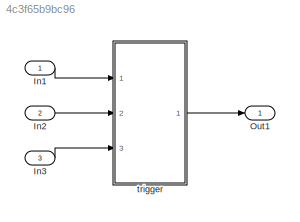
MODEL slx_4c3f65b9bc96
KIND model
CONFIG AbsTol = auto
CONFIG EnableMultiTasking = off
CONFIG FixedStep = auto
CONFIG MaxStep = auto
CONFIG MinStep = auto
CONFIG RelTol = 1e-3
CONFIG SampleTimeConstraint = Unconstrained
CONFIG Solver = FixedStepDiscrete
CONFIG SolverName = FixedStepDiscrete
CONFIG StartTime = 0.0
CONFIG StopTime = 10.0
BLOCK [Inport] In1
  IconDisplay = Port number
BLOCK [Inport] In2
  IconDisplay = Port number
  Port = 2
BLOCK [Inport] In3
  IconDisplay = Port number
  Port = 3
BLOCK [Outport] Out1
  IconDisplay = Port number
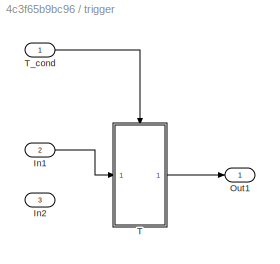
BLOCK [SubSystem] trigger
  AncestorBlock = Block_TestLib/trigger
  Ports = [3, 1]
  RequestExecContextInheritance = off
  Variant = off
BLOCK [Inport] trigger/In1
  IconDisplay = Port number
  Port = 2
BLOCK [Inport] trigger/In2
  IconDisplay = Port number
  Port = 3
BLOCK [Outport] trigger/Out1
  IconDisplay = Port number
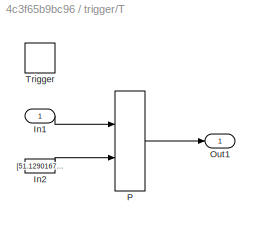
BLOCK [SubSystem] trigger/T
  Ports = [1, 1, 0, 1]
  RequestExecContextInheritance = off
  TreatAsAtomicUnit = on
  Variant = off
BLOCK [Inport] trigger/T/In1
  IconDisplay = Port number
  OutDataTypeStr = double
  PortDimensions = [2,3]
BLOCK [Constant] trigger/T/In2
  Value = [51.1290167803944 52.6290167803944 54.1290167803944 55.6290167803944 57.1290167803944 58.6290167803944 60.1290167803944 61.6290167803944 63.1290167803944 64.6290167803944 66.1290167803944 67.6290167803944 69.1290167803944 70.6290167803944 72.1290167803944 73.6290167803944 75.1290167803944 76.6290167803944 78.1290167803944 79.6290167803944 81.1290167803944 82.6290167803944 84.1290167803944 85.62901...<+43ch>
BLOCK [Outport] trigger/T/Out1
  IconDisplay = Port number
BLOCK [PreLookup] trigger/T/P
  BeginIndexSearchUsingPreviousIndexResult = on
  BreakpointDataTypeStr = int8
  BreakpointsData = [10:10:110]
  BreakpointsDataSource = Input port
  FractionDataTypeStr = double
  IndexDataTypeStr = int16
  IndexSearchMethod = Linear search
  InputPortMap = u0,p1
  OutputSelection = Index only
  Ports = [2, 1]
  RndMeth = Ceiling
BLOCK [TriggerPort] trigger/T/Trigger
  Ports = []
  StatesWhenEnabling = held
  VariantControl = Variant
BLOCK [Inport] trigger/T_cond
  IconDisplay = Port number
  OutDataTypeStr = boolean
LINE In1:1 -> trigger:1
LINE In2:1 -> trigger:2
LINE In3:1 -> trigger:3
LINE trigger:1 -> Out1:1
